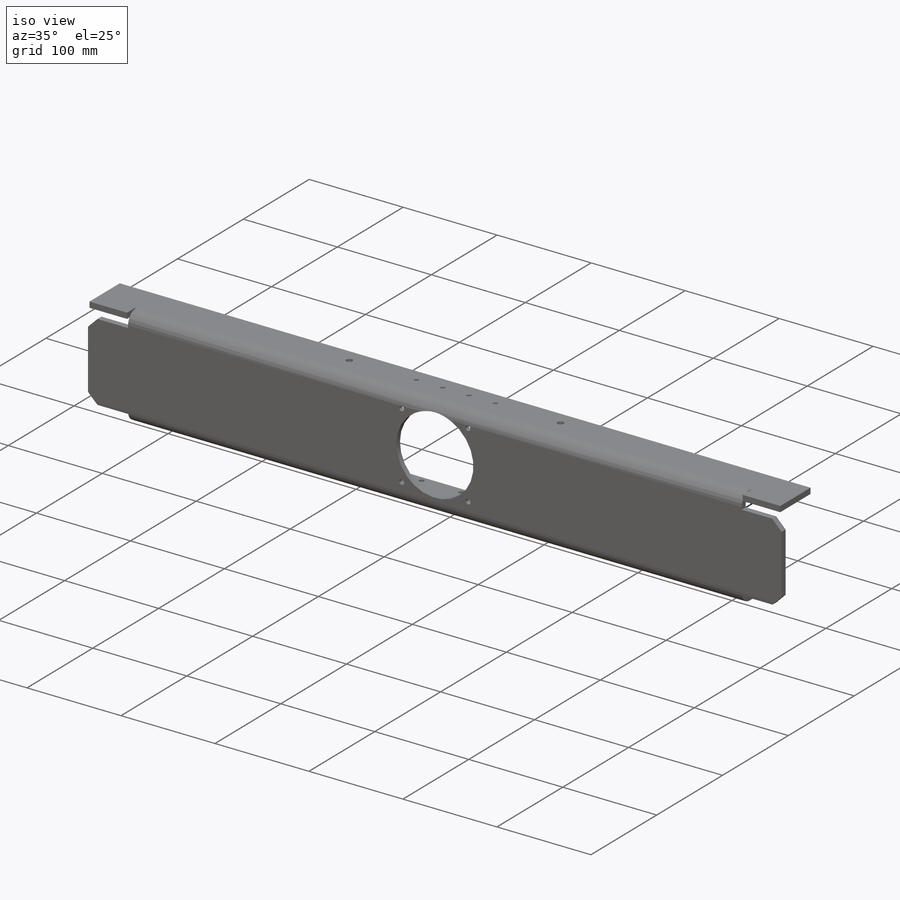
[diagram: iso view]
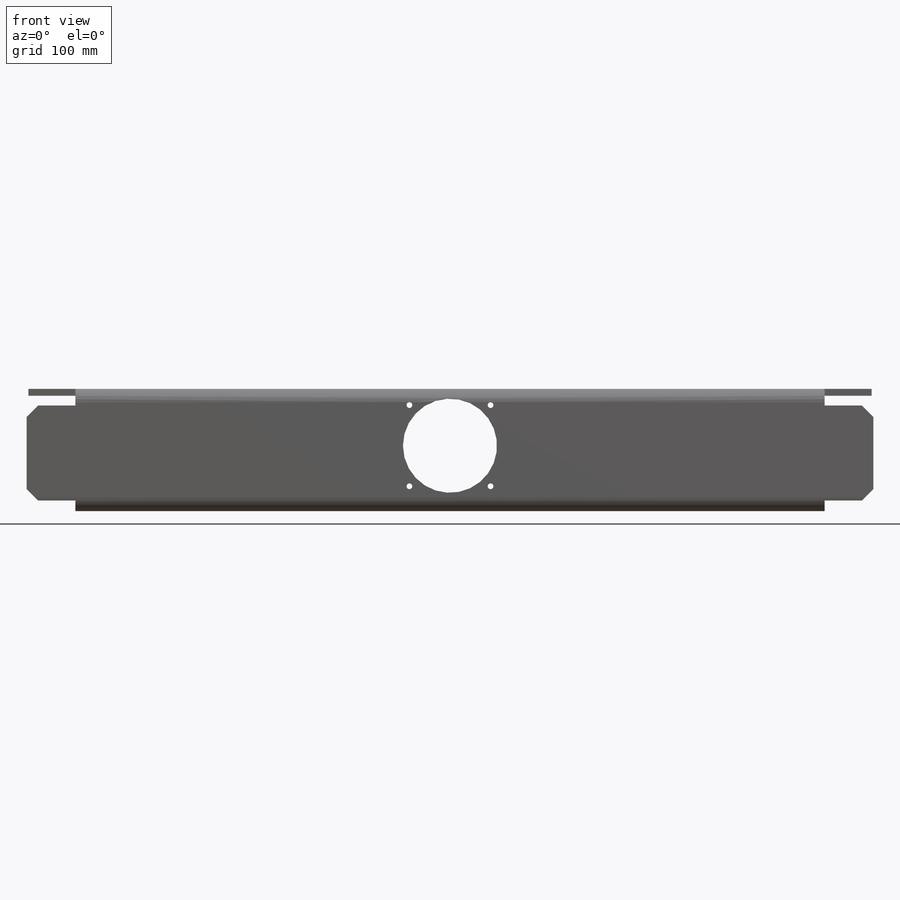
[diagram: front view]
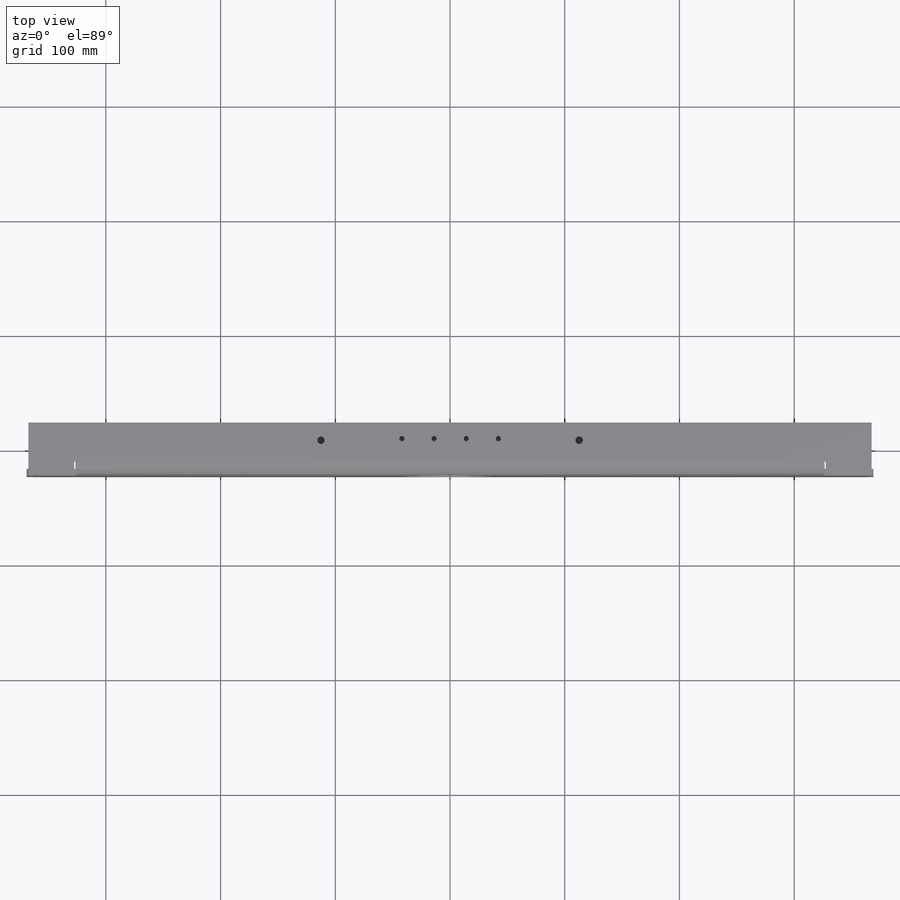
[diagram: top view]
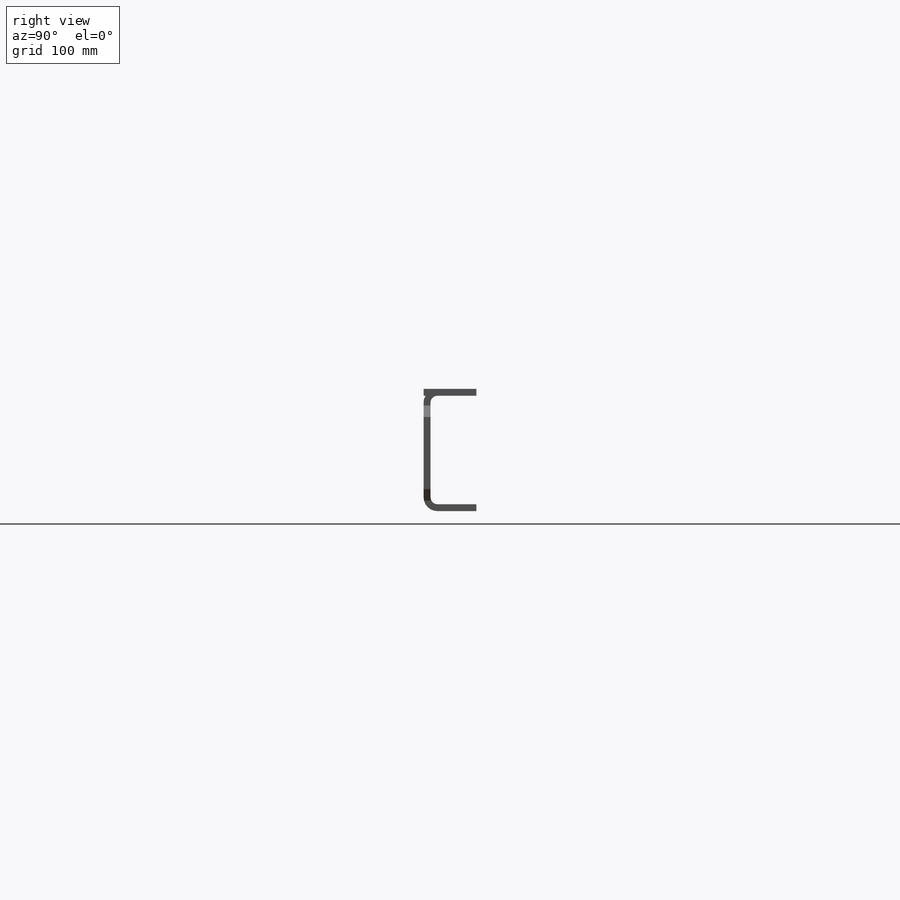
[diagram: right view]
SOLIDWORKS PART (.sldprt)
format: sldprt  version: not decoded by parser v0  size: 546,816 bytes
history: native  units: mm
features: sketch x16, thread x11, cut_extrude x5, material x4, sheet_metal_op x3, extrude x3, hole x3, plane x1, chamfer x1 + 4 further entries (+11 scaffold rows collapsed)
feature tree (62):
  scaffold x11  (default folders/planes/origin — collapsed)
  material  " 09Г2С ГОСТ 4543-71"
  material  "PTricksFreeParameters"
  material  "PTricksEqu"
  material  "PTricksFreeParameters"
  plane  "Спереди"
  "Начало координат"
  sketch  "Эскиз1"  dims[c1.D1=~88.74122mm c2.D1=106.5mm c2.D2=46.0mm]
  sheet_metal_op  "Листовой металл1"  Толщина=6mm
  sheet_metal_op  "Базовая кромка1"
  sheet_metal_op  "Основание2"
  sketch  "Эскиз3"  dims[D4=3.0mm D1=1.5mm D2=90.0mm D3=96.0mm]
  cut_extrude  "Площадка под привод"  Depth=0.5mm
  sketch  "Эскиз4"  dims[D1=0.0mm D2=0.0mm D3=0.0mm D4=0.0mm]
  cut_extrude  "Вытянуть2"  Depth=41mm
  sketch  "Эскиз5"  dims[D1=0.0mm]
  cut_extrude  "Вытянуть3"  Depth=41mm
  sketch  "Эскиз6"  dims[D1=1.0mm]
  extrude  "Вытянуть4"  [1 undecoded]
  sketch  "Эскиз8"  dims[D1=9.2mm D2=82.8mm]
  extrude  "Вытянуть5"  Depth=42.5mm
  sketch  "Эскиз9"  dims[D1=0.0mm]
  extrude  "Вытянуть6"  Depth=42.5mm
  chamfer  "Фаска1"  Distance=10mm Angle=45deg
  sketch  "Эскиз10"  dims[c1.D2=100.0mm c1.D3=82.0mm c1.D4=82.0mm c1.D1=~105.562109mm c2.D1=45.0deg c2.D4=45.0mm c2.D5=3.75mm]
  hole  "Отверстие обработанное метчиком M6x1.01"  [1 undecoded]
  sketch  "Эскиз12"
  sketch  "Эскиз11"  dims[hole-wizard template sketch: 55 standard entries collapsed; hole parameters kept: c17.Глубина проходного сверла=5.5mm c17.Диаметр передней зенковки=6.5mm c17.D4=~3.666174mm c17.Угол передней зенковки=90.0deg]
  thread  "Отверстие резьбы1"  Diameter=6mm  [1 undecoded]
  thread  "Отверстие резьбы2"  Diameter=6mm  [1 undecoded]
  thread  "Отверстие резьбы3"  Diameter=6mm  [1 undecoded]
  thread  "Отверстие резьбы4"  Diameter=6mm  [1 undecoded]
  cut_extrude  "Вытянуть7"  [1 undecoded]
  hole  "Отверстие обработанное метчиком M5x0.81"  [1 undecoded]
  sketch  "Эскиз14"  dims[D1=84.0mm D2=14.0mm D3=28.0mm D4=28.0mm D5=28.0mm]
  sketch  "Эскиз13"  dims[hole-wizard template sketch: 54 standard entries collapsed; hole parameters kept: c17.Диаметр проходного сверла=4.2mm c17.Глубина проходного сверла=4.5mm c17.Диаметр передней зенковки=5.5mm c17.D4=~3.666174mm c17.Угол передней зенковки=90.0deg]
  thread  "Отверстие резьбы5"  Diameter=5mm  [1 undecoded]
  thread  "Отверстие резьбы6"  Diameter=5mm  [1 undecoded]
  thread  "Отверстие резьбы7"  Diameter=5mm  [1 undecoded]
  thread  "Отверстие резьбы8"  Diameter=5mm  [1 undecoded]
  hole  "Отверстие обработанное метчиком M6x1.02"  [1 undecoded]
  sketch  "Эскиз16"  dims[D1=84.0mm D2=6.0mm]
  sketch  "Эскиз15"  dims[hole-wizard template sketch: 55 standard entries collapsed; hole parameters kept: c17.Глубина проходного сверла=6.0mm c17.Диаметр передней зенковки=6.5mm c17.D4=~3.666174mm c17.Угол передней зенковки=90.0deg]
  thread  "Отверстие резьбы9"  Diameter=6mm  [1 undecoded]
  thread  "Отверстие резьбы10"  Diameter=6mm  [1 undecoded]
  thread  "Отверстие резьбы11"  Diameter=6mm  [1 undecoded]
  sketch  "Эскиз17"  dims[D3=6.5mm D1=225.0mm D2=15.5mm]
  cut_extrude  "Вытянуть8"  [1 undecoded]
  "Развертка1"
  sketch  "Сгиб-Линии1"
  "Плоское состояние-<Основание2>1"
  "Преобразование эскиза1"
decode coverage: 32 of 42 modeling features carry decoded parameters; 4 rows unclassified (native names shown)
note: ~ marks probable driven/reference dimensions
note: 17 parameter values undecoded
summary: no parameter record found for 6 features
note: suppression state not decoded; provenance and decode notes live in map.json
